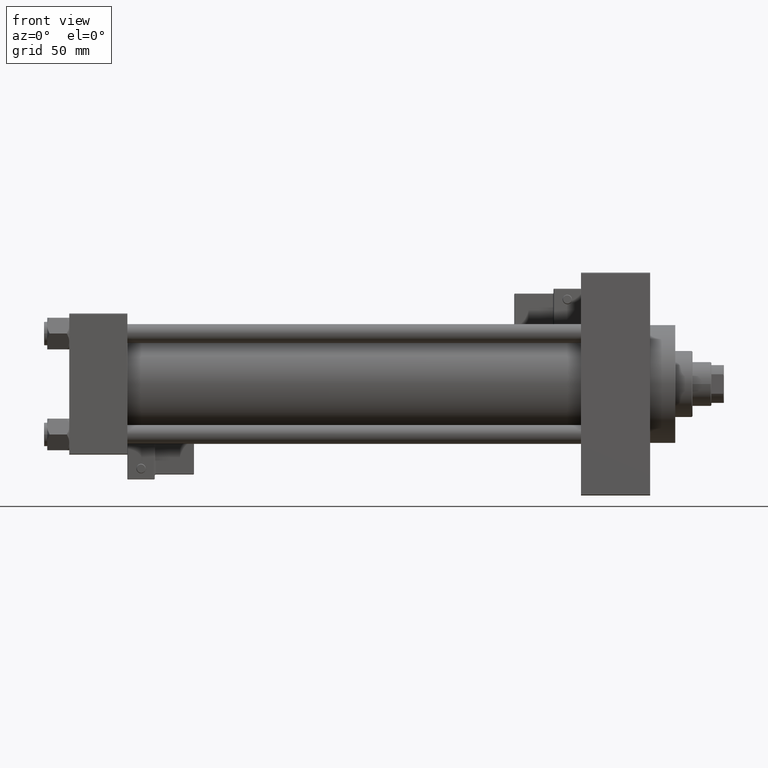
[diagram: clean part render]
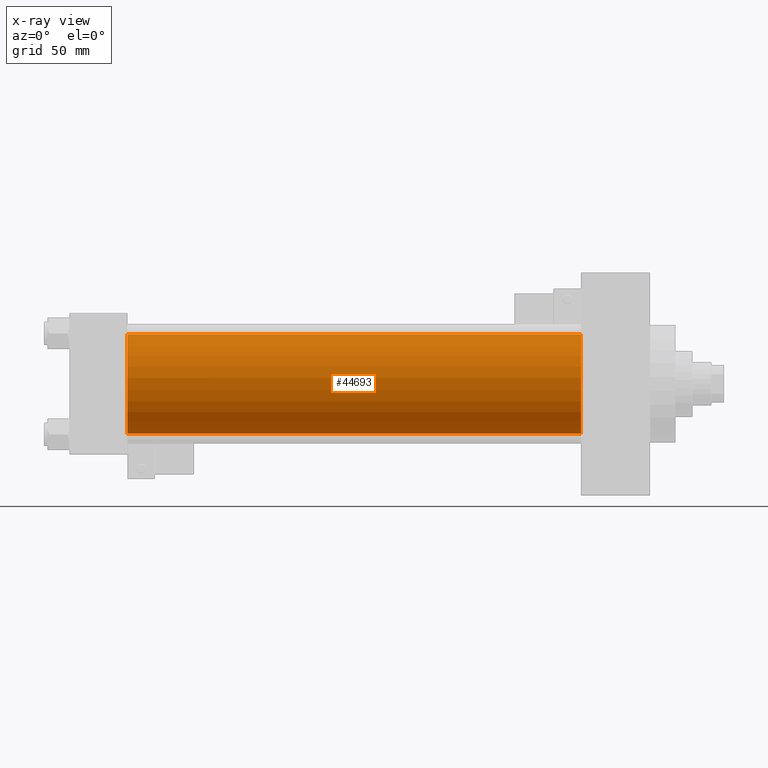
[diagram: x-ray — body ghosted, one internal face saturated and labeled with its STEP entity id]
A machine part, front view, then the same camera in x-ray: the body is ghosted and one INTERNAL B-rep face — a face not visible from any outside direction — is saturated and labeled: STEP entity #44693.
In plain terms, the highlighted cylindrical surface (partial cylindrical patch) has radius 31.5 mm, axis along (-1, -0, -0).
Its self-contained STEP definition (entity closure, byte-faithful):
#1502 = ORIENTED_EDGE ( 'NONE', *, *, #18072, .T. ) ;
#2195 = VERTEX_POINT ( 'NONE', #51493 ) ;
#7919 = EDGE_LOOP ( 'NONE', ( #14875, #1502, #33699, #28729 ) ) ;
#8509 = CARTESIAN_POINT ( 'NONE',  ( 325.9999999999999432, -2.602085213965210642E-15, 31.50000000000000000 ) ) ;
#9860 = DIRECTION ( 'NONE',  ( 1.000000000000000000, 0.000000000000000000, 0.000000000000000000 ) ) ;
#11147 = DIRECTION ( 'NONE',  ( -1.000000000000000000, -0.000000000000000000, -0.000000000000000000 ) ) ;
#12725 = AXIS2_PLACEMENT_3D ( 'NONE', #35115, #50226, #14559 ) ;
#14559 = DIRECTION ( 'NONE',  ( 0.000000000000000000, 0.000000000000000000, 1.000000000000000000 ) ) ;
#14875 = ORIENTED_EDGE ( 'NONE', *, *, #30421, .T. ) ;
#18072 = EDGE_CURVE ( 'NONE', #22689, #2195, #43917, .T. ) ;
#18469 = FACE_OUTER_BOUND ( 'NONE', #7919, .T. ) ;
#21221 = DIRECTION ( 'NONE',  ( 1.000000000000000000, 0.000000000000000000, 0.000000000000000000 ) ) ;
#22689 = VERTEX_POINT ( 'NONE', #38102 ) ;
#24603 = EDGE_CURVE ( 'NONE', #41201, #2195, #33982, .T. ) ;
#25035 = CARTESIAN_POINT ( 'NONE',  ( 325.9999999999999432, -2.602085213965210642E-15, 31.50000000000000000 ) ) ;
#25126 = CARTESIAN_POINT ( 'NONE',  ( 325.9999999999999432, -2.602085213965210642E-15, 0.000000000000000000 ) ) ;
#28729 = ORIENTED_EDGE ( 'NONE', *, *, #51072, .F. ) ;
#29604 = VECTOR ( 'NONE', #40898, 1000.000000000000000 ) ;
#29711 = VECTOR ( 'NONE', #11147, 1000.000000000000000 ) ;
#30421 = EDGE_CURVE ( 'NONE', #37221, #22689, #47359, .T. ) ;
#33699 = ORIENTED_EDGE ( 'NONE', *, *, #24603, .F. ) ;
#33982 = CIRCLE ( 'NONE', #38999, 31.50000000000000000 ) ;
#34873 = CARTESIAN_POINT ( 'NONE',  ( 37.00000000000000000, -2.602085213965210642E-15, 31.50000000000000000 ) ) ;
#35115 = CARTESIAN_POINT ( 'NONE',  ( 325.9999999999999432, -2.602085213965210642E-15, 0.000000000000000000 ) ) ;
#35363 = CARTESIAN_POINT ( 'NONE',  ( 325.9999999999999432, 1.255552203348951850E-15, -31.50000000000000000 ) ) ;
#36955 = CARTESIAN_POINT ( 'NONE',  ( 37.00000000000000000, -2.602085213965210642E-15, 0.000000000000000000 ) ) ;
#37221 = VERTEX_POINT ( 'NONE', #8509 ) ;
#38102 = CARTESIAN_POINT ( 'NONE',  ( 325.9999999999999432, 1.255552203348951850E-15, -31.50000000000000000 ) ) ;
#38999 = AXIS2_PLACEMENT_3D ( 'NONE', #36955, #9860, #40607 ) ;
#39031 = AXIS2_PLACEMENT_3D ( 'NONE', #25126, #21221, #40991 ) ;
#40607 = DIRECTION ( 'NONE',  ( 0.000000000000000000, 0.000000000000000000, -1.000000000000000000 ) ) ;
#40898 = DIRECTION ( 'NONE',  ( -1.000000000000000000, -0.000000000000000000, -0.000000000000000000 ) ) ;
#40991 = DIRECTION ( 'NONE',  ( 0.000000000000000000, 0.000000000000000000, -1.000000000000000000 ) ) ;
#41201 = VERTEX_POINT ( 'NONE', #34873 ) ;
#43917 = LINE ( 'NONE', #35363, #29711 ) ;
#44693 = ADVANCED_FACE ( 'NONE', ( #18469 ), #46297, .F. ) ;
#46297 = CYLINDRICAL_SURFACE ( 'NONE', #12725, 31.50000000000000000 ) ;
#47359 = CIRCLE ( 'NONE', #39031, 31.50000000000000000 ) ;
#48468 = LINE ( 'NONE', #25035, #29604 ) ;
#50226 = DIRECTION ( 'NONE',  ( -1.000000000000000000, -0.000000000000000000, -0.000000000000000000 ) ) ;
#51072 = EDGE_CURVE ( 'NONE', #37221, #41201, #48468, .T. ) ;
#51493 = CARTESIAN_POINT ( 'NONE',  ( 37.00000000000000000, 1.255552203348951850E-15, -31.50000000000000000 ) ) ;